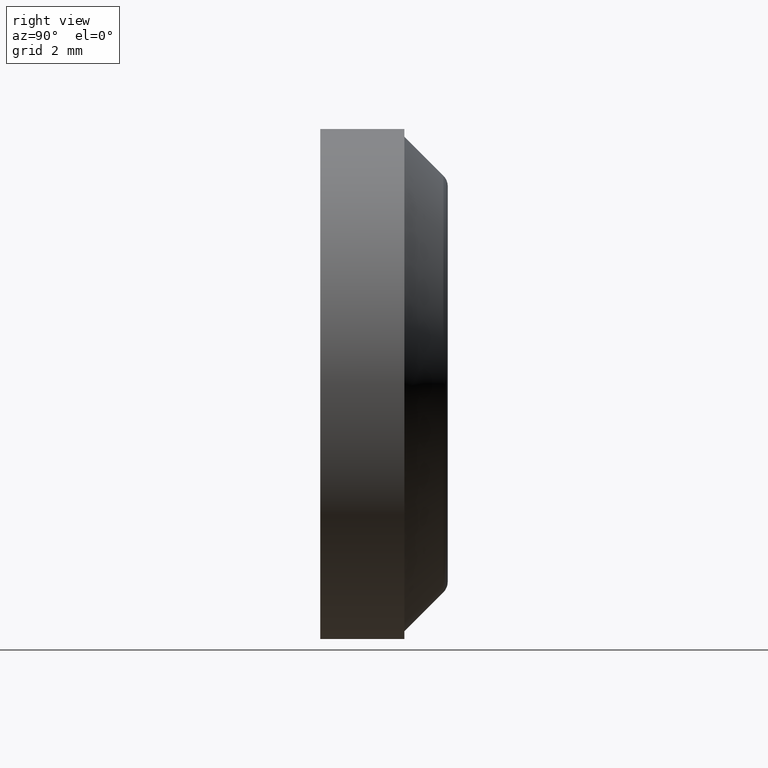
[diagram: clean part render]
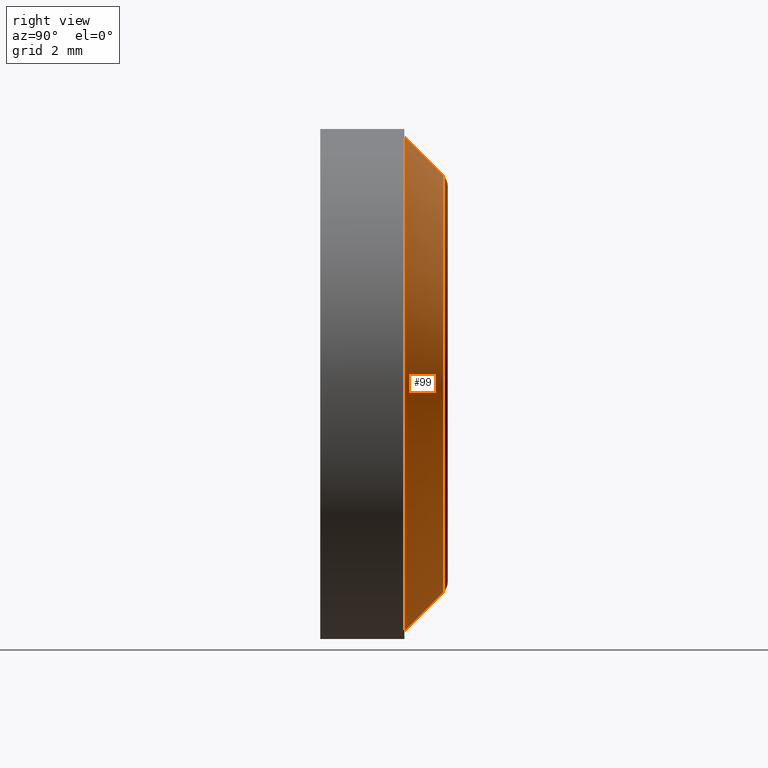
[diagram: same view with one face highlighted and labeled with its STEP entity id]
A machine part, right view. The second image highlights one B-rep face of the part: STEP entity #99.
In plain terms, the highlighted conical surface has half-angle 45 deg.
Its self-contained STEP definition (entity closure, byte-faithful):
#28 = DIRECTION ( 'NONE',  ( 0.0000000000000000000, -1.000000000000000000, 0.0000000000000000000 ) ) ;
#40 = EDGE_CURVE ( 'NONE', #244, #481, #400, .T. ) ;
#49 = CIRCLE ( 'NONE', #149, 4.850000000000000500 ) ;
#63 = DIRECTION ( 'NONE',  ( -0.0000000000000000000, 1.000000000000000000, -0.0000000000000000000 ) ) ;
#86 = EDGE_LOOP ( 'NONE', ( #376, #490, #156, #276 ) ) ;
#99 = ADVANCED_FACE ( 'NONE', ( #510 ), #374, .T. ) ;
#105 = DIRECTION ( 'NONE',  ( 0.0000000000000000000, 0.0000000000000000000, -1.000000000000000000 ) ) ;
#126 = VERTEX_POINT ( 'NONE', #368 ) ;
#148 = CARTESIAN_POINT ( 'NONE',  ( 0.0000000000000000000, 2.412132034355964000, 0.0000000000000000000 ) ) ;
#149 = AXIS2_PLACEMENT_3D ( 'NONE', #363, #63, #504 ) ;
#150 = CARTESIAN_POINT ( 'NONE',  ( 0.0000000000000000000, 1.649999999999999500, -4.850000000000000500 ) ) ;
#156 = ORIENTED_EDGE ( 'NONE', *, *, #512, .T. ) ;
#167 = VECTOR ( 'NONE', #348, 999.9999999999998900 ) ;
#176 = CARTESIAN_POINT ( 'NONE',  ( 5.472865697663817900E-016, 2.412132034355964000, 4.087867965644037800 ) ) ;
#181 = DIRECTION ( 'NONE',  ( 0.0000000000000000000, 0.0000000000000000000, -1.000000000000000000 ) ) ;
#205 = AXIS2_PLACEMENT_3D ( 'NONE', #148, #28, #105 ) ;
#243 = VECTOR ( 'NONE', #507, 999.9999999999998900 ) ;
#244 = VERTEX_POINT ( 'NONE', #487 ) ;
#258 = CARTESIAN_POINT ( 'NONE',  ( 0.0000000000000000000, 1.649999999999999500, 0.0000000000000000000 ) ) ;
#276 = ORIENTED_EDGE ( 'NONE', *, *, #40, .F. ) ;
#277 = AXIS2_PLACEMENT_3D ( 'NONE', #258, #378, #181 ) ;
#283 = EDGE_CURVE ( 'NONE', #244, #346, #417, .T. ) ;
#332 = CARTESIAN_POINT ( 'NONE',  ( 5.939536975864663000E-016, 1.649999999999999500, 4.850000000000000500 ) ) ;
#346 = VERTEX_POINT ( 'NONE', #176 ) ;
#348 = DIRECTION ( 'NONE',  ( 0.0000000000000000000, -0.7071067811865489100, -0.7071067811865462400 ) ) ;
#363 = CARTESIAN_POINT ( 'NONE',  ( 0.0000000000000000000, 1.649999999999999500, 0.0000000000000000000 ) ) ;
#368 = CARTESIAN_POINT ( 'NONE',  ( 5.939536975864663000E-016, 1.649999999999999500, 4.850000000000000500 ) ) ;
#374 = CONICAL_SURFACE ( 'NONE', #277, 4.850000000000000500, 0.7853981633974465000 ) ;
#376 = ORIENTED_EDGE ( 'NONE', *, *, #283, .T. ) ;
#378 = DIRECTION ( 'NONE',  ( 0.0000000000000000000, -1.000000000000000000, 0.0000000000000000000 ) ) ;
#400 = LINE ( 'NONE', #150, #167 ) ;
#417 = CIRCLE ( 'NONE', #205, 4.087867965644037800 ) ;
#465 = LINE ( 'NONE', #332, #243 ) ;
#477 = EDGE_CURVE ( 'NONE', #346, #126, #465, .T. ) ;
#481 = VERTEX_POINT ( 'NONE', #505 ) ;
#487 = CARTESIAN_POINT ( 'NONE',  ( 0.0000000000000000000, 2.412132034355964000, -4.087867965644037800 ) ) ;
#490 = ORIENTED_EDGE ( 'NONE', *, *, #477, .T. ) ;
#504 = DIRECTION ( 'NONE',  ( 0.0000000000000000000, 0.0000000000000000000, 1.000000000000000000 ) ) ;
#505 = CARTESIAN_POINT ( 'NONE',  ( 0.0000000000000000000, 1.649999999999999500, -4.850000000000000500 ) ) ;
#507 = DIRECTION ( 'NONE',  ( 8.659560562354918100E-017, -0.7071067811865489100, 0.7071067811865462400 ) ) ;
#510 = FACE_OUTER_BOUND ( 'NONE', #86, .T. ) ;
#512 = EDGE_CURVE ( 'NONE', #126, #481, #49, .T. ) ;